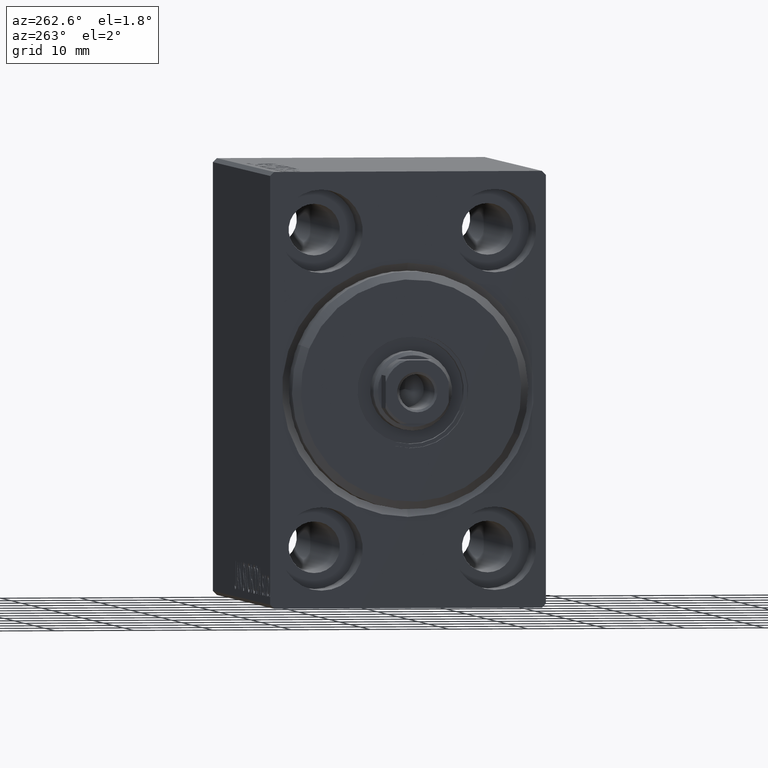
[diagram: clean part render]
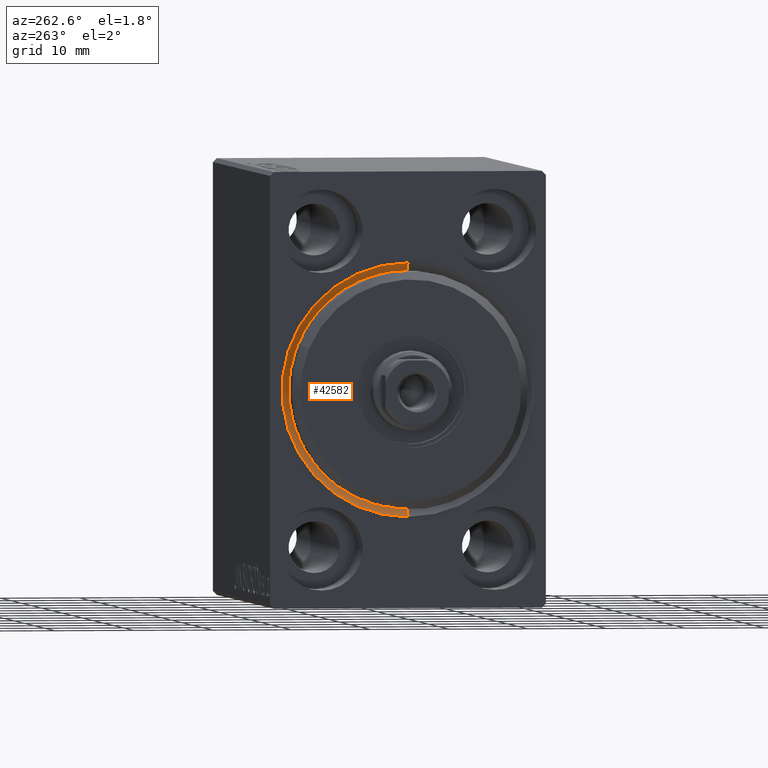
[diagram: same view with one face highlighted and labeled with its STEP entity id]
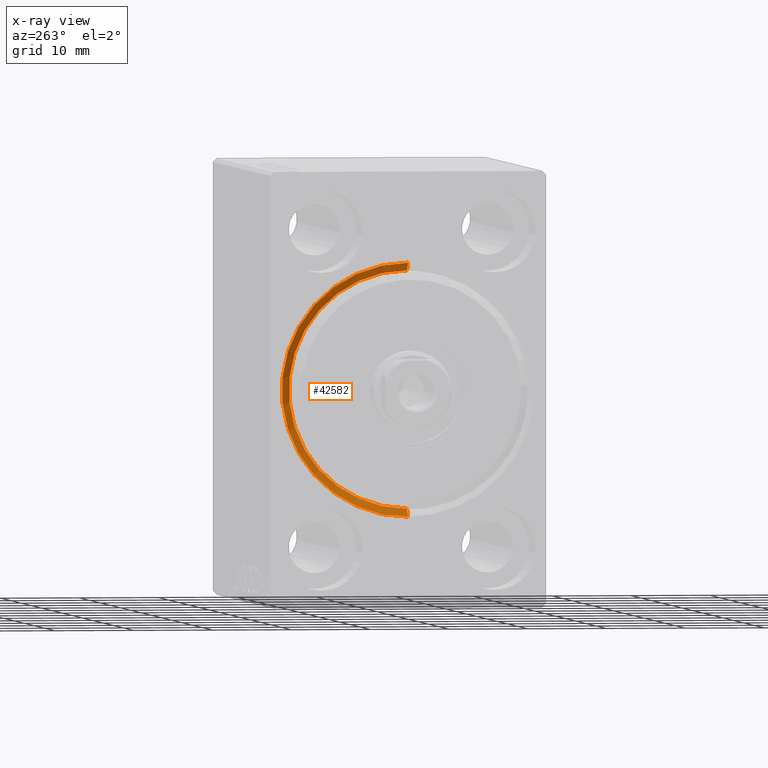
[diagram: x-ray of the same camera — body ghosted, the highlighted face saturated]
A machine part, auxiliary view. The second image highlights one B-rep face of the part: STEP entity #42582.
The next image is the same camera in x-ray: the body ghosted, the highlighted face saturated — about 0% of this face is hidden behind the body in this view.
In plain terms, the highlighted conical surface has half-angle 45 deg.
Its self-contained STEP definition (entity closure, byte-faithful):
#1646 = ORIENTED_EDGE ( 'NONE', *, *, #15827, .F. ) ;
#1801 = CARTESIAN_POINT ( 'NONE',  ( 1.000000000000013101, 1.836970198721029589E-15, -15.00000000000000000 ) ) ;
#4129 = DIRECTION ( 'NONE',  ( -1.000000000000000000, 0.000000000000000000, 0.000000000000000000 ) ) ;
#5814 = DIRECTION ( 'NONE',  ( 1.000000000000000000, 0.000000000000000000, 0.000000000000000000 ) ) ;
#7797 = EDGE_CURVE ( 'NONE', #31849, #27227, #32422, .T. ) ;
#8607 = CIRCLE ( 'NONE', #30580, 16.00000000000001421 ) ;
#9462 = CARTESIAN_POINT ( 'NONE',  ( 1.000000000000013101, 0.000000000000000000, 0.000000000000000000 ) ) ;
#13103 = LINE ( 'NONE', #13746, #37005 ) ;
#13746 = CARTESIAN_POINT ( 'NONE',  ( 1.000000000000013101, 0.000000000000000000, 15.00000000000000000 ) ) ;
#14760 = CARTESIAN_POINT ( 'NONE',  ( 0.000000000000000000, 0.000000000000000000, 0.000000000000000000 ) ) ;
#15461 = CARTESIAN_POINT ( 'NONE',  ( 0.000000000000000000, 1.959434878635766709E-15, -16.00000000000001421 ) ) ;
#15827 = EDGE_CURVE ( 'NONE', #27227, #39988, #25978, .T. ) ;
#19521 = EDGE_LOOP ( 'NONE', ( #1646, #41995, #33690, #22563 ) ) ;
#19896 = CARTESIAN_POINT ( 'NONE',  ( 0.000000000000000000, 0.000000000000000000, 16.00000000000001421 ) ) ;
#20874 = AXIS2_PLACEMENT_3D ( 'NONE', #34547, #4129, #28307 ) ;
#21914 = CARTESIAN_POINT ( 'NONE',  ( 1.000000000000013101, 1.836970198721029589E-15, -15.00000000000000000 ) ) ;
#22563 = ORIENTED_EDGE ( 'NONE', *, *, #23094, .F. ) ;
#22982 = DIRECTION ( 'NONE',  ( -1.000000000000000000, 0.000000000000000000, 0.000000000000000000 ) ) ;
#23094 = EDGE_CURVE ( 'NONE', #39988, #40051, #8607, .T. ) ;
#25538 = DIRECTION ( 'NONE',  ( -0.7071067811865469066, 8.659560562354940254E-17, -0.7071067811865481278 ) ) ;
#25978 = LINE ( 'NONE', #1801, #34049 ) ;
#27227 = VERTEX_POINT ( 'NONE', #21914 ) ;
#27639 = CARTESIAN_POINT ( 'NONE',  ( 1.000000000000013101, 0.000000000000000000, 15.00000000000000000 ) ) ;
#28307 = DIRECTION ( 'NONE',  ( 0.000000000000000000, 0.000000000000000000, 1.000000000000000000 ) ) ;
#29132 = DIRECTION ( 'NONE',  ( 0.000000000000000000, 0.000000000000000000, -1.000000000000000000 ) ) ;
#30580 = AXIS2_PLACEMENT_3D ( 'NONE', #14760, #5814, #29132 ) ;
#31275 = EDGE_CURVE ( 'NONE', #31849, #40051, #13103, .T. ) ;
#31849 = VERTEX_POINT ( 'NONE', #27639 ) ;
#32422 = CIRCLE ( 'NONE', #35973, 15.00000000000000000 ) ;
#33426 = DIRECTION ( 'NONE',  ( 0.000000000000000000, 0.000000000000000000, -1.000000000000000000 ) ) ;
#33690 = ORIENTED_EDGE ( 'NONE', *, *, #31275, .T. ) ;
#33748 = DIRECTION ( 'NONE',  ( -0.7071067811865469066, 0.000000000000000000, 0.7071067811865481278 ) ) ;
#34049 = VECTOR ( 'NONE', #25538, 1000.000000000000114 ) ;
#34360 = CONICAL_SURFACE ( 'NONE', #20874, 15.00000000000000000, 0.7853981633974491672 ) ;
#34547 = CARTESIAN_POINT ( 'NONE',  ( 1.000000000000013101, 0.000000000000000000, 0.000000000000000000 ) ) ;
#35973 = AXIS2_PLACEMENT_3D ( 'NONE', #9462, #22982, #33426 ) ;
#37005 = VECTOR ( 'NONE', #33748, 1000.000000000000114 ) ;
#38106 = FACE_OUTER_BOUND ( 'NONE', #19521, .T. ) ;
#39988 = VERTEX_POINT ( 'NONE', #15461 ) ;
#40051 = VERTEX_POINT ( 'NONE', #19896 ) ;
#41995 = ORIENTED_EDGE ( 'NONE', *, *, #7797, .F. ) ;
#42582 = ADVANCED_FACE ( 'NONE', ( #38106 ), #34360, .F. ) ;